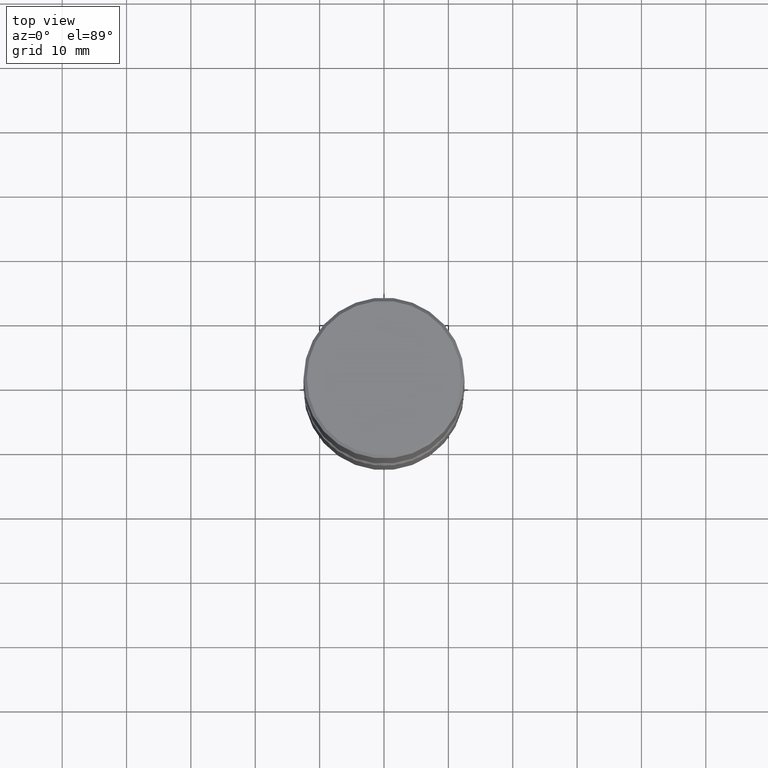
[diagram: clean part render]
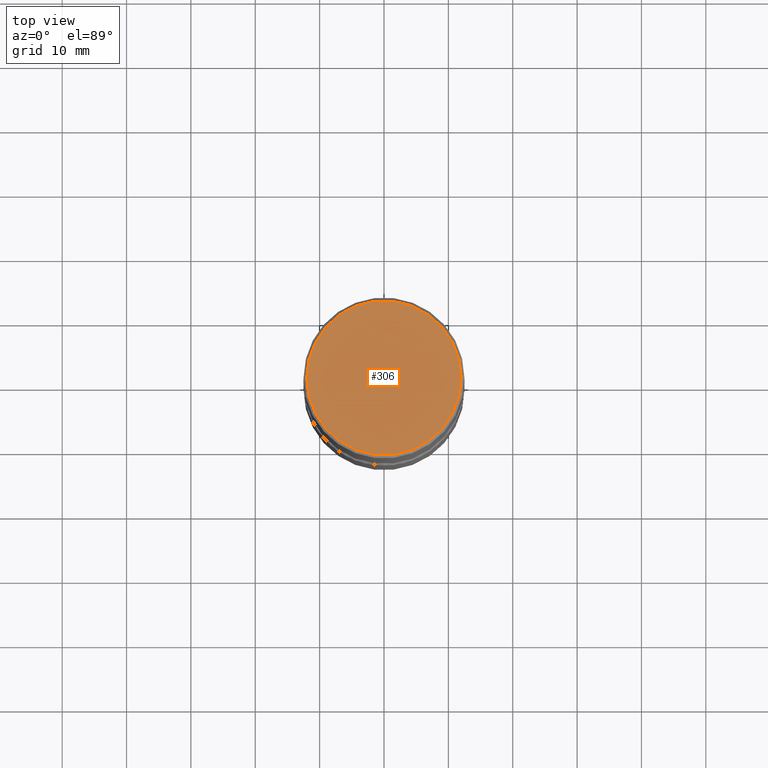
[diagram: same view with one face highlighted and labeled with its STEP entity id]
A machine part, top view. The second image highlights one B-rep face of the part: STEP entity #306.
In plain terms, the highlighted planar face has unit normal (0, -0, -1).
Its self-contained STEP definition (entity closure, byte-faithful):
#11 = AXIS2_PLACEMENT_3D ( 'NONE', #227, #399, #355 ) ;
#18 = PLANE ( 'NONE',  #489 ) ;
#101 = DIRECTION ( 'NONE',  ( 1.000000000000000000, -6.982962677686266711E-15, 4.876006802227158492E-29 ) ) ;
#154 = CARTESIAN_POINT ( 'NONE',  ( 3.297005828269570364E-15, 0.4721500000000000696, -1.644234401644690869E-15 ) ) ;
#167 = EDGE_CURVE ( 'NONE', #351, #244, #222, .T. ) ;
#183 = EDGE_CURVE ( 'NONE', #244, #351, #184, .T. ) ;
#184 = CIRCLE ( 'NONE', #385, 0.4721500000000000696 ) ;
#220 = ORIENTED_EDGE ( 'NONE', *, *, #167, .T. ) ;
#222 = CIRCLE ( 'NONE', #11, 0.4721500000000000696 ) ;
#224 = DIRECTION ( 'NONE',  ( -2.445468806185136597E-29, 3.491481338843145583E-15, 1.000000000000000000 ) ) ;
#227 = CARTESIAN_POINT ( 'NONE',  ( -2.087702828670439639E-46, 2.980686340760894400E-32, 8.537024980200822558E-18 ) ) ;
#242 = CARTESIAN_POINT ( 'NONE',  ( 0.4721500000000000696, -3.342703923013975763E-15, 8.537024980224040028E-18 ) ) ;
#244 = VERTEX_POINT ( 'NONE', #242 ) ;
#288 = DIRECTION ( 'NONE',  ( 2.438088387897960049E-29, -3.491481338843145188E-15, -1.000000000000000000 ) ) ;
#296 = EDGE_LOOP ( 'NONE', ( #220, #460 ) ) ;
#306 = ADVANCED_FACE ( 'NONE', ( #407 ), #18, .F. ) ;
#318 = CARTESIAN_POINT ( 'NONE',  ( -2.087702828670439639E-46, 2.980686340760894400E-32, 8.537024980200822558E-18 ) ) ;
#320 = DIRECTION ( 'NONE',  ( -1.000000000000000000, 6.982962677686265922E-15, -4.876176775795935793E-29 ) ) ;
#351 = VERTEX_POINT ( 'NONE', #457 ) ;
#355 = DIRECTION ( 'NONE',  ( 1.000000000000000000, -6.982962677686266711E-15, 4.876006802227158492E-29 ) ) ;
#385 = AXIS2_PLACEMENT_3D ( 'NONE', #318, #224, #101 ) ;
#399 = DIRECTION ( 'NONE',  ( -2.445468806185136597E-29, 3.491481338843145583E-15, 1.000000000000000000 ) ) ;
#407 = FACE_OUTER_BOUND ( 'NONE', #296, .T. ) ;
#457 = CARTESIAN_POINT ( 'NONE',  ( -0.4721500000000000696, 3.331920641658002013E-15, 8.537024980177643606E-18 ) ) ;
#460 = ORIENTED_EDGE ( 'NONE', *, *, #183, .T. ) ;
#489 = AXIS2_PLACEMENT_3D ( 'NONE', #154, #288, #320 ) ;